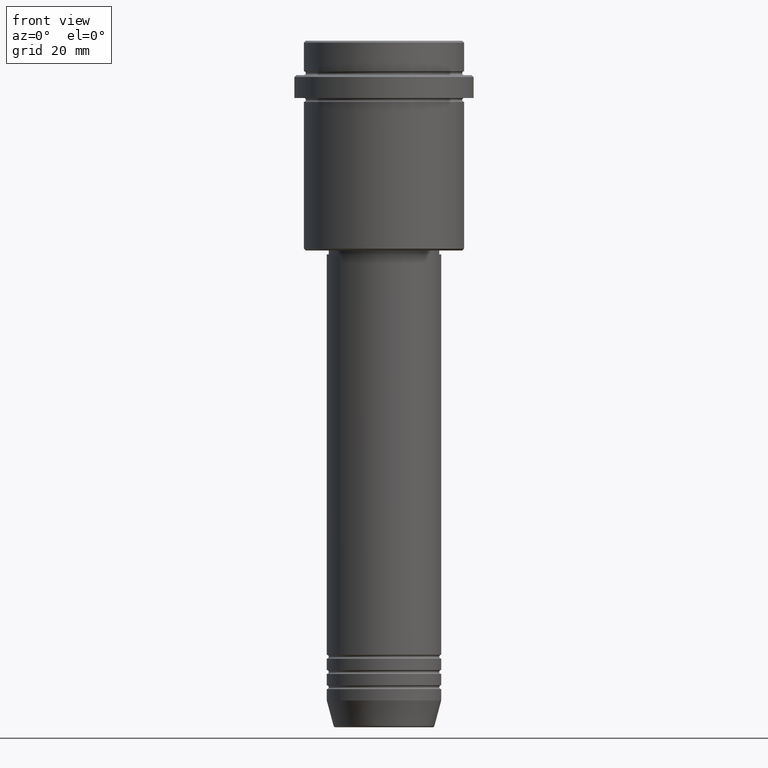
[diagram: clean part render]
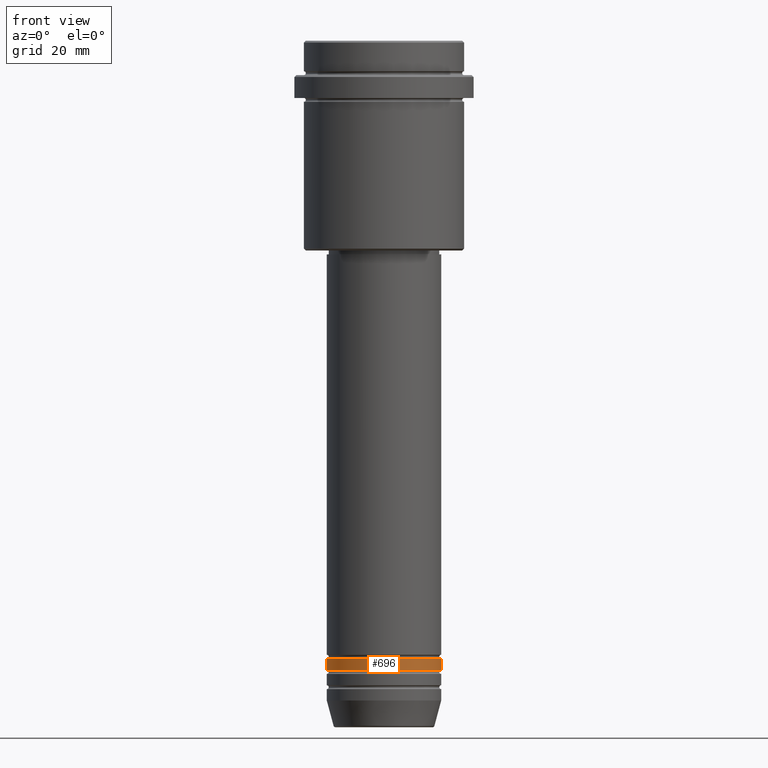
[diagram: same view with one face highlighted and labeled with its STEP entity id]
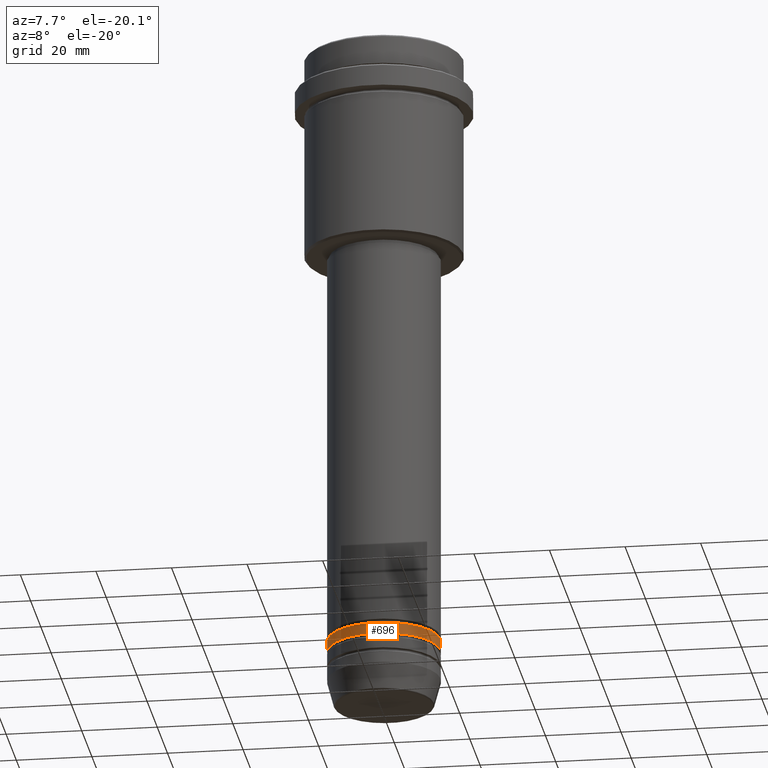
[diagram: same view with one face highlighted and labeled with its STEP entity id]
A machine part, front view. The second image highlights one B-rep face of the part: STEP entity #696.
A second angle (auxiliary view) of the same face is appended — the face is thin or edge-on in the first view.
In plain terms, the highlighted cylindrical surface (partial cylindrical patch) has radius 15 mm, axis along (-0, -0, 1).
Its self-contained STEP definition (entity closure, byte-faithful):
#45 = VERTEX_POINT ( 'NONE', #441 ) ;
#69 = DIRECTION ( 'NONE',  ( -0.000000000000000000, -0.000000000000000000, 1.000000000000000000 ) ) ;
#92 = CARTESIAN_POINT ( 'NONE',  ( -15.00000000000000000, 1.836970198721029589E-15, 0.000000000000000000 ) ) ;
#107 = VECTOR ( 'NONE', #391, 1000.000000000000000 ) ;
#119 = VERTEX_POINT ( 'NONE', #1250 ) ;
#142 = DIRECTION ( 'NONE',  ( -0.000000000000000000, -0.000000000000000000, 1.000000000000000000 ) ) ;
#183 = LINE ( 'NONE', #92, #611 ) ;
#199 = ORIENTED_EDGE ( 'NONE', *, *, #795, .F. ) ;
#224 = CARTESIAN_POINT ( 'NONE',  ( 0.000000000000000000, 0.000000000000000000, -161.9999999999998579 ) ) ;
#284 = DIRECTION ( 'NONE',  ( 1.000000000000000000, 0.000000000000000000, 0.000000000000000000 ) ) ;
#343 = DIRECTION ( 'NONE',  ( -0.000000000000000000, -0.000000000000000000, 1.000000000000000000 ) ) ;
#358 = DIRECTION ( 'NONE',  ( -0.000000000000000000, -0.000000000000000000, 1.000000000000000000 ) ) ;
#391 = DIRECTION ( 'NONE',  ( -0.000000000000000000, -0.000000000000000000, 1.000000000000000000 ) ) ;
#425 = AXIS2_PLACEMENT_3D ( 'NONE', #489, #358, #284 ) ;
#441 = CARTESIAN_POINT ( 'NONE',  ( 15.00000000000000000, 0.000000000000000000, -164.9999999999998579 ) ) ;
#489 = CARTESIAN_POINT ( 'NONE',  ( 0.000000000000000000, 0.000000000000000000, -164.9999999999998579 ) ) ;
#504 = CARTESIAN_POINT ( 'NONE',  ( 15.00000000000000000, 0.000000000000000000, 0.000000000000000000 ) ) ;
#551 = EDGE_LOOP ( 'NONE', ( #199, #1354, #1186, #664 ) ) ;
#587 = AXIS2_PLACEMENT_3D ( 'NONE', #224, #343, #1413 ) ;
#611 = VECTOR ( 'NONE', #69, 1000.000000000000000 ) ;
#662 = VERTEX_POINT ( 'NONE', #1267 ) ;
#664 = ORIENTED_EDGE ( 'NONE', *, *, #952, .F. ) ;
#668 = EDGE_CURVE ( 'NONE', #662, #45, #1278, .T. ) ;
#696 = ADVANCED_FACE ( 'NONE', ( #701 ), #1140, .T. ) ;
#701 = FACE_OUTER_BOUND ( 'NONE', #551, .T. ) ;
#795 = EDGE_CURVE ( 'NONE', #662, #119, #183, .T. ) ;
#919 = CARTESIAN_POINT ( 'NONE',  ( 15.00000000000000000, 0.000000000000000000, -161.9999999999998579 ) ) ;
#952 = EDGE_CURVE ( 'NONE', #119, #1130, #1242, .T. ) ;
#1022 = DIRECTION ( 'NONE',  ( 1.000000000000000000, 0.000000000000000000, 0.000000000000000000 ) ) ;
#1030 = AXIS2_PLACEMENT_3D ( 'NONE', #1334, #142, #1022 ) ;
#1130 = VERTEX_POINT ( 'NONE', #919 ) ;
#1140 = CYLINDRICAL_SURFACE ( 'NONE', #1030, 15.00000000000000000 ) ;
#1154 = LINE ( 'NONE', #504, #107 ) ;
#1186 = ORIENTED_EDGE ( 'NONE', *, *, #1294, .T. ) ;
#1242 = CIRCLE ( 'NONE', #587, 15.00000000000000000 ) ;
#1250 = CARTESIAN_POINT ( 'NONE',  ( -15.00000000000000000, 1.836970198721029589E-15, -161.9999999999998579 ) ) ;
#1267 = CARTESIAN_POINT ( 'NONE',  ( -15.00000000000000000, 1.836970198721029589E-15, -164.9999999999998579 ) ) ;
#1278 = CIRCLE ( 'NONE', #425, 15.00000000000000000 ) ;
#1294 = EDGE_CURVE ( 'NONE', #45, #1130, #1154, .T. ) ;
#1334 = CARTESIAN_POINT ( 'NONE',  ( 0.000000000000000000, 0.000000000000000000, 0.000000000000000000 ) ) ;
#1354 = ORIENTED_EDGE ( 'NONE', *, *, #668, .T. ) ;
#1413 = DIRECTION ( 'NONE',  ( 1.000000000000000000, 0.000000000000000000, 0.000000000000000000 ) ) ;